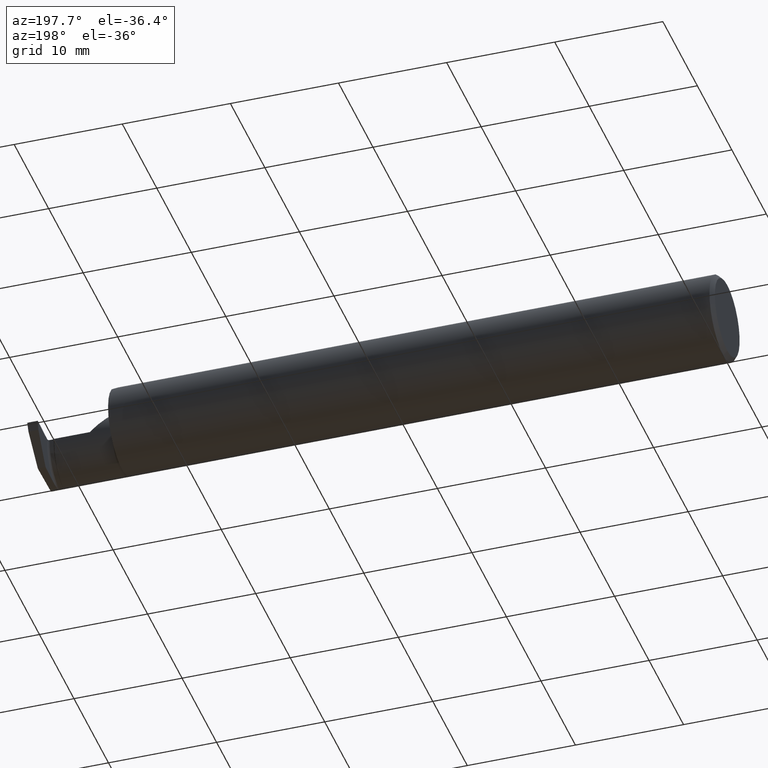
[diagram: clean part render]
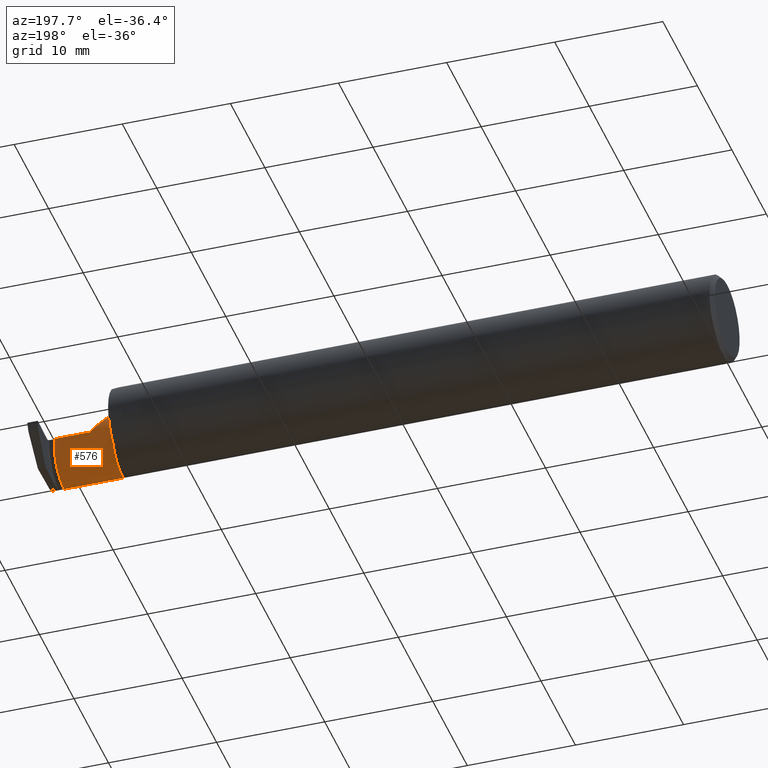
[diagram: same view with one face highlighted and labeled with its STEP entity id]
A machine part, auxiliary view. The second image highlights one B-rep face of the part: STEP entity #576.
In plain terms, the highlighted cylindrical surface (edge-blend (fillet) strip) has radius 3.175 mm, axis along (-1, -0, -0).
Its self-contained STEP definition (entity closure, byte-faithful):
#32 = EDGE_CURVE ( 'NONE', #751, #410, #921, .T. ) ;
#35 = LINE ( 'NONE', #926, #354 ) ;
#37 = DIRECTION ( 'NONE',  ( 1.000000000000000000, 0.000000000000000000, 0.000000000000000000 ) ) ;
#110 = CARTESIAN_POINT ( 'NONE',  ( 2.444434342834632456, -0.07682770099498056893, -0.1246764389792178601 ) ) ;
#113 = DIRECTION ( 'NONE',  ( -1.000000000000000000, -0.000000000000000000, -0.000000000000000000 ) ) ;
#119 = CARTESIAN_POINT ( 'NONE',  ( 2.441745746300310937, 0.02266124532788424406, -0.05660255573121700245 ) ) ;
#124 = CARTESIAN_POINT ( 'NONE',  ( 2.229999999999999982, -0.09360841750841744635, -0.1249186702281520206 ) ) ;
#128 = EDGE_CURVE ( 'NONE', #777, #966, #348, .T. ) ;
#147 = ORIENTED_EDGE ( 'NONE', *, *, #128, .T. ) ;
#148 = FACE_OUTER_BOUND ( 'NONE', #501, .T. ) ;
#165 = CARTESIAN_POINT ( 'NONE',  ( 2.439500000000000668, 0.03590000000000006380, 7.121324356843854204E-18 ) ) ;
#224 = ORIENTED_EDGE ( 'NONE', *, *, #844, .T. ) ;
#252 = CARTESIAN_POINT ( 'NONE',  ( 2.442779211480258894, 0.003680225035948395812, -0.08417898221071792864 ) ) ;
#260 = CARTESIAN_POINT ( 'NONE',  ( 2.440136326121404409, 0.03505389276857047431, -0.01675733926064582394 ) ) ;
#310 = DIRECTION ( 'NONE',  ( 0.000000000000000000, 0.000000000000000000, 1.000000000000000000 ) ) ;
#334 = CARTESIAN_POINT ( 'NONE',  ( 2.439500000000000668, 0.03590000000000006380, 7.121324356843854204E-18 ) ) ;
#340 = CARTESIAN_POINT ( 'NONE',  ( 2.441113950496093032, 0.02918506513611369285, -0.04126825218361444142 ) ) ;
#343 = CARTESIAN_POINT ( 'NONE',  ( 2.443961941366489476, -0.03654066397851373632, -0.1137198188534176702 ) ) ;
#348 = LINE ( 'NONE', #728, #385 ) ;
#349 = ORIENTED_EDGE ( 'NONE', *, *, #32, .F. ) ;
#354 = VECTOR ( 'NONE', #113, 39.37007874015748143 ) ;
#372 = CARTESIAN_POINT ( 'NONE',  ( 2.280465398849123471, 0.03590000000000002217, 0.02953460115087711002 ) ) ;
#385 = VECTOR ( 'NONE', #37, 39.37007874015748143 ) ;
#404 = CARTESIAN_POINT ( 'NONE',  ( 2.444440054791709560, -0.08516785805708998458, -0.1252232969580210631 ) ) ;
#406 = ORIENTED_EDGE ( 'NONE', *, *, #650, .T. ) ;
#410 = VERTEX_POINT ( 'NONE', #124 ) ;
#411 = CARTESIAN_POINT ( 'NONE',  ( 2.229999999999999982, 0.006946863561492249567, 0.08000000000000061229 ) ) ;
#412 = CARTESIAN_POINT ( 'NONE',  ( 2.443498977729190003, -0.01493723905660577361, -0.1009718453463276516 ) ) ;
#442 = CARTESIAN_POINT ( 'NONE',  ( 2.205000000000000071, -0.08909999999999998477, 0.000000000000000000 ) ) ;
#453 = CARTESIAN_POINT ( 'NONE',  ( 2.310000000000000053, 0.03589999999999998748, 2.326828918379970872E-17 ) ) ;
#457 = CARTESIAN_POINT ( 'NONE',  ( 2.229999999999999982, 0.006946863561492249567, 0.08000000000000061229 ) ) ;
#495 = CARTESIAN_POINT ( 'NONE',  ( 2.443264957495132172, -0.008299177380266364867, -0.09573660881673179412 ) ) ;
#501 = EDGE_LOOP ( 'NONE', ( #147, #974, #224, #349, #406 ) ) ;
#502 = CARTESIAN_POINT ( 'NONE',  ( 2.444421270371394783, -0.09360841750841741860, -0.1249186702281520206 ) ) ;
#535 = DIRECTION ( 'NONE',  ( -1.000000000000000000, -0.000000000000000000, -0.000000000000000000 ) ) ;
#545 = EDGE_CURVE ( 'NONE', #966, #859, #640, .T. ) ;
#553 = CARTESIAN_POINT ( 'NONE',  ( 2.444194041562742115, -0.05212838071819808627, -0.1196987066377708103 ) ) ;
#576 = ADVANCED_FACE ( 'NONE', ( #148 ), #588, .T. ) ;
#588 = CYLINDRICAL_SURFACE ( 'NONE', #687, 0.1250000000000000000 ) ;
#595 = CARTESIAN_POINT ( 'NONE',  ( 2.229999999999999982, -0.08909999999999998477, 0.000000000000000000 ) ) ;
#640 = B_SPLINE_CURVE_WITH_KNOTS ( 'NONE', 3,
 ( #334, #927, #260, #799, #340, #119, #873, #862, #252, #495, #412, #784, #343, #553, #789, #110, #404, #711 ),
 .UNSPECIFIED., .F., .F.,
 ( 4, 2, 2, 2, 2, 2, 2, 2, 4 ),
 ( 0.000000000000000000, 0.0006369471920935089720, 0.001273894384187017944, 0.001910841576280527133, 0.002547788768374036322, 0.003184735960467545944, 0.003821683152561055133, 0.004458630344654565189, 0.005095577536748075245 ),
 .UNSPECIFIED. ) ;
#650 = EDGE_CURVE ( 'NONE', #751, #777, #679, .T. ) ;
#679 =( BOUNDED_CURVE ( )  B_SPLINE_CURVE ( 3, ( #457, #752, #372, #453 ),
 .UNSPECIFIED., .F., .F. ) 
 B_SPLINE_CURVE_WITH_KNOTS ( ( 4, 4 ),
 ( 0.8762980611683343080, 1.570796326794896558 ),
 .UNSPECIFIED. ) 
 CURVE ( )  GEOMETRIC_REPRESENTATION_ITEM ( )  RATIONAL_B_SPLINE_CURVE ( ( 1.000000000000000000, 0.9602082824955224805, 0.9602082824955224805, 1.000000000000000000 ) ) 
 REPRESENTATION_ITEM ( '' )  );
#687 = AXIS2_PLACEMENT_3D ( 'NONE', #442, #883, #968 ) ;
#711 = CARTESIAN_POINT ( 'NONE',  ( 2.444421270371394783, -0.09360841750841741860, -0.1249186702281520206 ) ) ;
#728 = CARTESIAN_POINT ( 'NONE',  ( 2.205000000000000071, 0.03590000000000001523, 3.612708057484693206E-17 ) ) ;
#751 = VERTEX_POINT ( 'NONE', #411 ) ;
#752 = CARTESIAN_POINT ( 'NONE',  ( 2.252693646456652043, 0.02584900829805373418, 0.05730635354334956411 ) ) ;
#753 = AXIS2_PLACEMENT_3D ( 'NONE', #595, #535, #310 ) ;
#777 = VERTEX_POINT ( 'NONE', #860 ) ;
#784 = CARTESIAN_POINT ( 'NONE',  ( 2.443837318536554282, -0.02909994945846453018, -0.1099791916609816622 ) ) ;
#789 = CARTESIAN_POINT ( 'NONE',  ( 2.444304227460238454, -0.06034218974546665115, -0.1219336381347309040 ) ) ;
#799 = CARTESIAN_POINT ( 'NONE',  ( 2.440776175144159232, 0.03171328743304741710, -0.03315338728253785366 ) ) ;
#844 = EDGE_CURVE ( 'NONE', #859, #410, #35, .T. ) ;
#859 = VERTEX_POINT ( 'NONE', #502 ) ;
#860 = CARTESIAN_POINT ( 'NONE',  ( 2.310000000000000053, 0.03589999999999998748, 2.326828918379970872E-17 ) ) ;
#862 = CARTESIAN_POINT ( 'NONE',  ( 2.442531040801282138, 0.009123469543013703817, -0.07776829327067366626 ) ) ;
#873 = CARTESIAN_POINT ( 'NONE',  ( 2.442020860755942824, 0.01865736008107955757, -0.06390703212994172655 ) ) ;
#883 = DIRECTION ( 'NONE',  ( -1.000000000000000000, -0.000000000000000000, -0.000000000000000000 ) ) ;
#921 = CIRCLE ( 'NONE', #753, 0.1250000000000000000 ) ;
#926 = CARTESIAN_POINT ( 'NONE',  ( 2.343250000000000277, -0.09360841750841747411, -0.1249186702281520206 ) ) ;
#927 = CARTESIAN_POINT ( 'NONE',  ( 2.439827623886626995, 0.03589999999670018954, -0.008439552695448212377 ) ) ;
#966 = VERTEX_POINT ( 'NONE', #165 ) ;
#968 = DIRECTION ( 'NONE',  ( 0.000000000000000000, 0.000000000000000000, 1.000000000000000000 ) ) ;
#974 = ORIENTED_EDGE ( 'NONE', *, *, #545, .T. ) ;